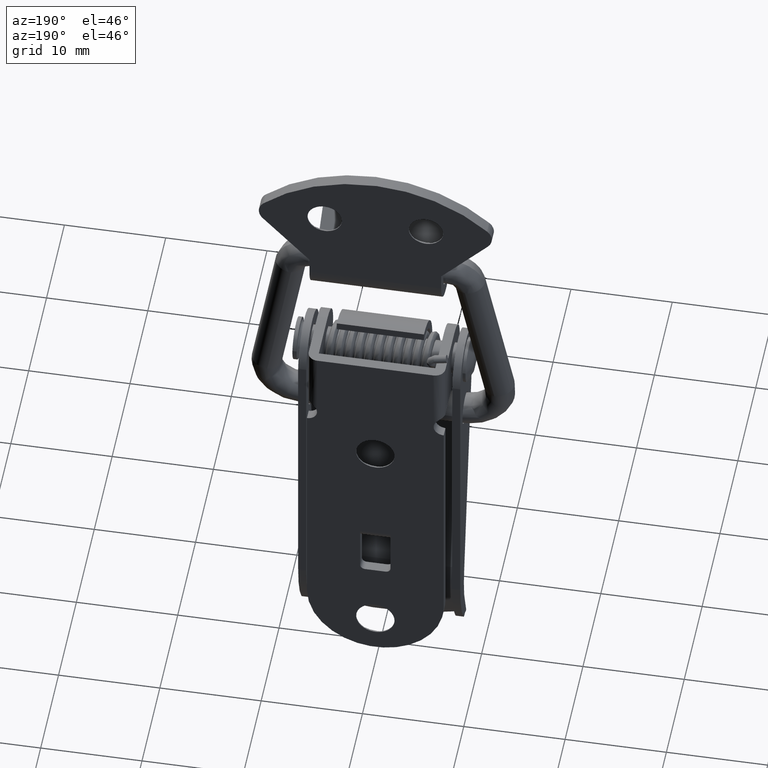
[diagram: clean part render]
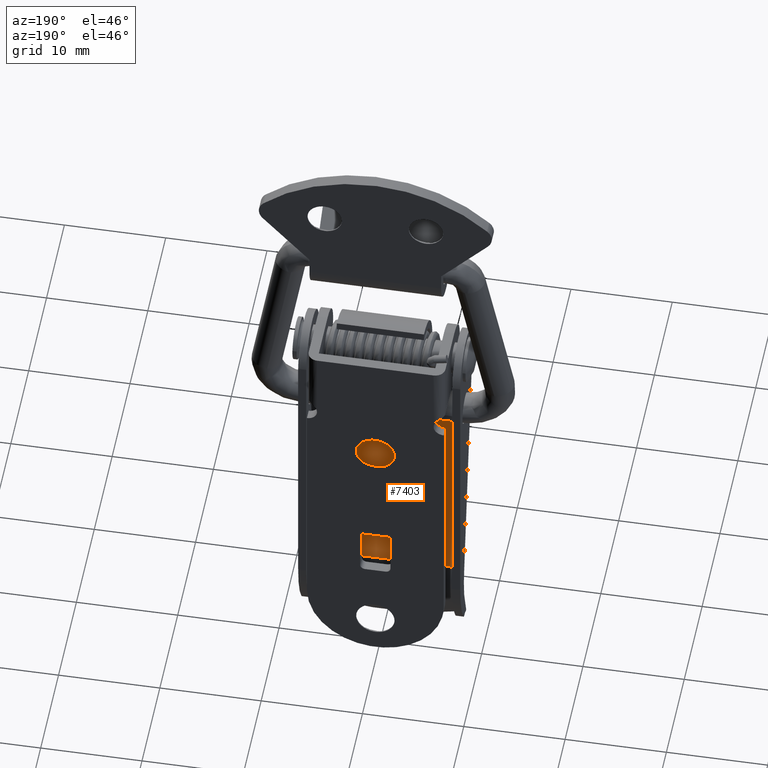
[diagram: same view with one face highlighted and labeled with its STEP entity id]
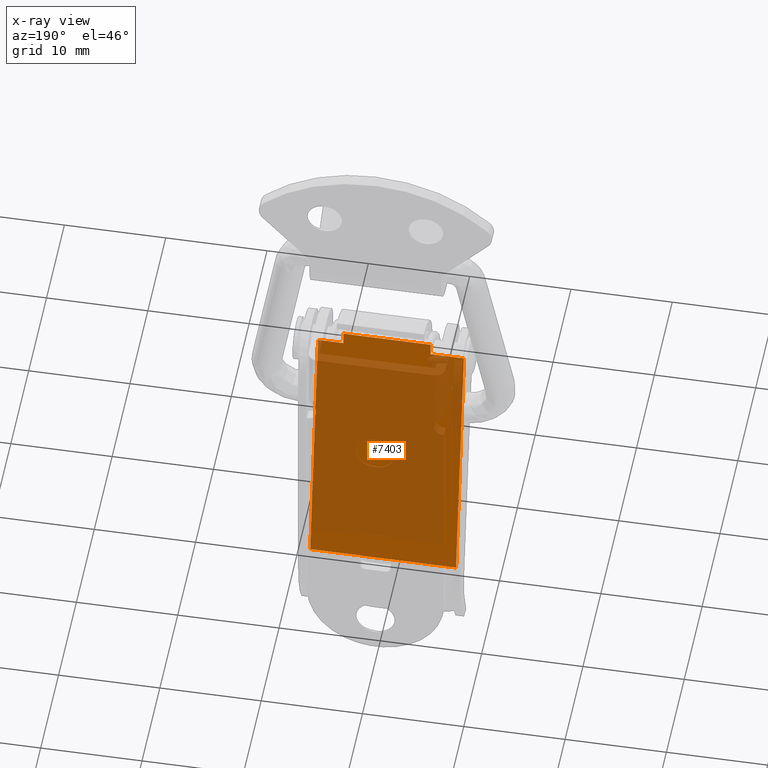
[diagram: x-ray of the same camera — body ghosted, the highlighted face saturated]
A machine part, auxiliary view. The second image highlights one B-rep face of the part: STEP entity #7403.
The next image is the same camera in x-ray: the body ghosted, the highlighted face saturated — about 74% of this face is hidden behind the body in this view.
In plain terms, the highlighted face is a freeform B-spline surface patch.
Its self-contained STEP definition (entity closure, byte-faithful):
#6610=CARTESIAN_POINT('',(-6.145584623679260,3.900000000038430,-17.864450497322348));
#6611=VERTEX_POINT('',#6610);
#6627=CARTESIAN_POINT('',(-5.949111704673860,3.900000000038430,-18.978703790924950));
#6628=VERTEX_POINT('',#6627);
#6629=CARTESIAN_POINT('',(-6.145584623679260,3.900000000038430,-17.864450497322348));
#6630=CARTESIAN_POINT('',(-5.949111704673860,3.900000000038430,-18.978703790924950));
#6631=QUASI_UNIFORM_CURVE('',1,(#6629,#6630),.UNSPECIFIED.,.F.,.U.);
#6632=EDGE_CURVE('',#6611,#6628,#6631,.T.);
#6656=CARTESIAN_POINT('',(-5.949111704673860,-4.699999999961510,-18.978703790924950));
#6657=VERTEX_POINT('',#6656);
#6663=CARTESIAN_POINT('',(-6.145584623679260,-4.699999999961510,-17.864450497322348));
#6664=VERTEX_POINT('',#6663);
#6665=CARTESIAN_POINT('',(-6.145584623679260,-4.699999999961510,-17.864450497322348));
#6666=CARTESIAN_POINT('',(-5.949111704673860,-4.699999999961510,-18.978703790924950));
#6667=QUASI_UNIFORM_CURVE('',1,(#6665,#6666),.UNSPECIFIED.,.F.,.U.);
#6668=EDGE_CURVE('',#6664,#6657,#6667,.T.);
#6733=CARTESIAN_POINT('',(-6.145584623679260,-4.699999999961510,-17.864450497322348));
#6734=CARTESIAN_POINT('',(-6.145584623679260,3.900000000038430,-17.864450497322348));
#6735=QUASI_UNIFORM_CURVE('',1,(#6733,#6734),.UNSPECIFIED.,.F.,.U.);
#6736=EDGE_CURVE('',#6664,#6611,#6735,.T.);
#7133=CARTESIAN_POINT('',(-1.574067184478040,-7.199999999961570,-43.790814238330050));
#7134=VERTEX_POINT('',#7133);
#7148=CARTESIAN_POINT('',(-5.949111704673860,-7.199999999961570,-18.978703790924950));
#7149=VERTEX_POINT('',#7148);
#7150=CARTESIAN_POINT('',(-1.574067184478040,-7.199999999961570,-43.790814238330050));
#7151=CARTESIAN_POINT('',(-5.949111704673860,-7.199999999961570,-18.978703790924950));
#7152=QUASI_UNIFORM_CURVE('',1,(#7150,#7151),.UNSPECIFIED.,.F.,.U.);
#7153=EDGE_CURVE('',#7134,#7149,#7152,.T.);
#7258=CARTESIAN_POINT('',(-1.574067184478040,7.200000000038400,-43.790814238330050));
#7259=VERTEX_POINT('',#7258);
#7349=CARTESIAN_POINT('',(-5.949111704673860,7.200000000038400,-18.978703790924950));
#7350=VERTEX_POINT('',#7349);
#7356=CARTESIAN_POINT('',(-1.574067184478040,7.200000000038400,-43.790814238330050));
#7357=CARTESIAN_POINT('',(-5.949111704673860,7.200000000038400,-18.978703790924950));
#7358=QUASI_UNIFORM_CURVE('',1,(#7356,#7357),.UNSPECIFIED.,.F.,.U.);
#7359=EDGE_CURVE('',#7259,#7350,#7358,.T.);
#7376=CARTESIAN_POINT('',(-6.373931894574199,-7.919279785427764,-16.569428771336518));
#7377=CARTESIAN_POINT('',(-1.345720117945852,-7.919279785427764,-45.085834805317113));
#7378=CARTESIAN_POINT('',(-6.373931894574199,7.919279270520462,-16.569428771336518));
#7379=CARTESIAN_POINT('',(-1.345720117945852,7.919279270520461,-45.085834805317113));
#7380=B_SPLINE_SURFACE_WITH_KNOTS('',1,1,((#7376,#7378),(#7377,#7379)),.UNSPECIFIED.,.F.,.F.,.U.,(2,2),(2,2),(0.0,28.956317562243111),(0.0,15.838559055948229),.UNSPECIFIED.);
#7381=ORIENTED_EDGE('',*,*,#7153,.F.);
#7382=CARTESIAN_POINT('',(-1.574067184478040,7.200000000038400,-43.790814238330050));
#7383=CARTESIAN_POINT('',(-1.574067184478040,-7.199999999961570,-43.790814238330050));
#7384=QUASI_UNIFORM_CURVE('',1,(#7382,#7383),.UNSPECIFIED.,.F.,.U.);
#7385=EDGE_CURVE('',#7259,#7134,#7384,.T.);
#7386=ORIENTED_EDGE('',*,*,#7385,.F.);
#7387=ORIENTED_EDGE('',*,*,#7359,.T.);
#7388=CARTESIAN_POINT('',(-5.949111704673860,7.200000000038400,-18.978703790924950));
#7389=CARTESIAN_POINT('',(-5.949111704673860,3.900000000038430,-18.978703790924950));
#7390=QUASI_UNIFORM_CURVE('',1,(#7388,#7389),.UNSPECIFIED.,.F.,.U.);
#7391=EDGE_CURVE('',#7350,#6628,#7390,.T.);
#7392=ORIENTED_EDGE('',*,*,#7391,.T.);
#7393=ORIENTED_EDGE('',*,*,#6632,.F.);
#7394=ORIENTED_EDGE('',*,*,#6736,.F.);
#7395=ORIENTED_EDGE('',*,*,#6668,.T.);
#7396=CARTESIAN_POINT('',(-5.949111704673860,-4.699999999961510,-18.978703790924950));
#7397=CARTESIAN_POINT('',(-5.949111704673860,-7.199999999961570,-18.978703790924950));
#7398=QUASI_UNIFORM_CURVE('',1,(#7396,#7397),.UNSPECIFIED.,.F.,.U.);
#7399=EDGE_CURVE('',#6657,#7149,#7398,.T.);
#7400=ORIENTED_EDGE('',*,*,#7399,.T.);
#7401=EDGE_LOOP('',(#7381,#7386,#7387,#7392,#7393,#7394,#7395,#7400));
#7402=FACE_OUTER_BOUND('',#7401,.T.);
#7403=ADVANCED_FACE('',(#7402),#7380,.T.);